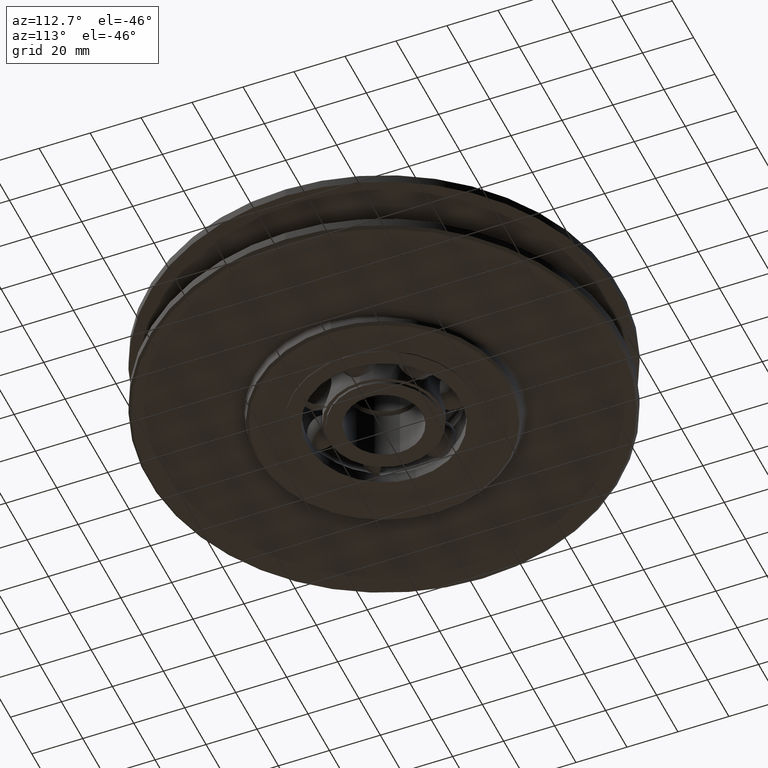
[diagram: clean part render]
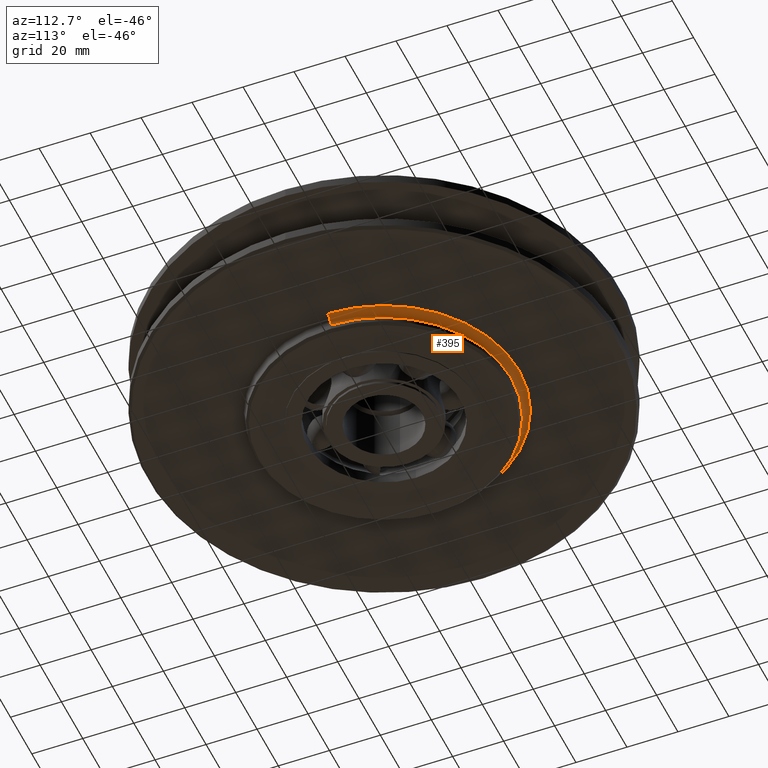
[diagram: same view with one face highlighted and labeled with its STEP entity id]
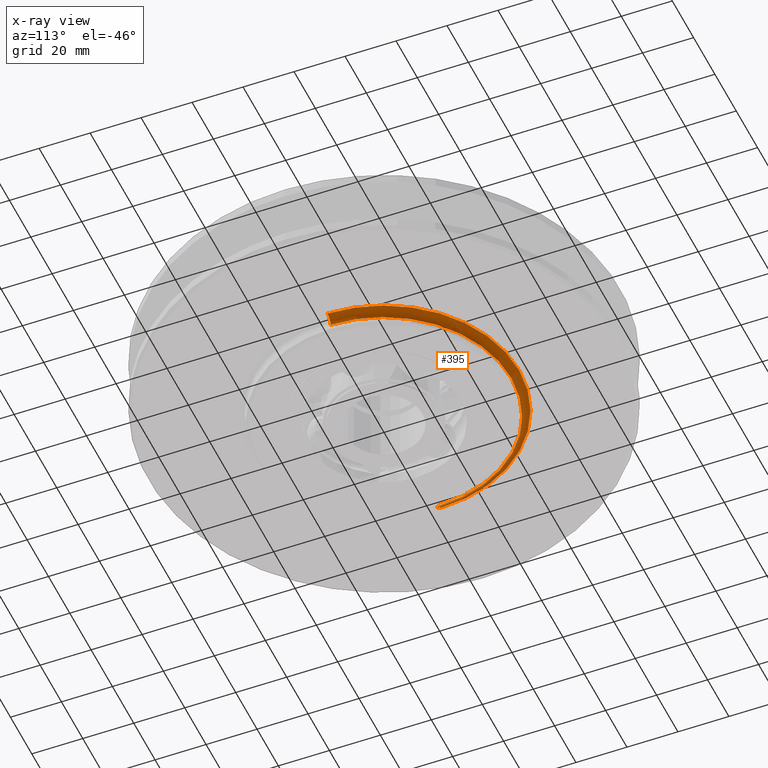
[diagram: x-ray of the same camera — body ghosted, the highlighted face saturated]
A machine part, auxiliary view. The second image highlights one B-rep face of the part: STEP entity #395.
The next image is the same camera in x-ray: the body ghosted, the highlighted face saturated — about 0% of this face is hidden behind the body in this view.
In plain terms, the highlighted toroidal blend (fillet) surface has major radius 53 mm and minor (blend) radius 3 mm.
Its self-contained STEP definition (entity closure, byte-faithful):
#395=ADVANCED_FACE('',(#815),#816,.F.);
#815=FACE_OUTER_BOUND('',#1233,.T.);
#816=TOROIDAL_SURFACE('',#1234,53.0,3.0);
#1233=EDGE_LOOP('',(#2505,#2506,#2507,#2508));
#1234=AXIS2_PLACEMENT_3D('',#2509,#2510,#2511);
#2505=ORIENTED_EDGE('',*,*,#2669,.T.);
#2506=ORIENTED_EDGE('',*,*,#3075,.F.);
#2507=ORIENTED_EDGE('',*,*,#2671,.T.);
#2508=ORIENTED_EDGE('',*,*,#2677,.T.);
#2509=CARTESIAN_POINT('',(0.0,0.0,-17.0));
#2510=DIRECTION('',(0.0,0.0,1.0));
#2511=DIRECTION('',(1.0,0.0,0.0));
#2669=EDGE_CURVE('',#3268,#3269,#3270,.T.);
#2671=EDGE_CURVE('',#3273,#3271,#3274,.T.);
#2677=EDGE_CURVE('',#3271,#3268,#3282,.T.);
#3075=EDGE_CURVE('',#3273,#3269,#3866,.T.);
#3268=VERTEX_POINT('',#5131);
#3269=VERTEX_POINT('',#5132);
#3270=CIRCLE('',#5133,3.0);
#3271=VERTEX_POINT('',#5134);
#3273=VERTEX_POINT('',#5136);
#3274=CIRCLE('',#5137,3.0);
#3282=CIRCLE('',#5147,50.0);
#3866=CIRCLE('',#8499,53.0);
#5131=CARTESIAN_POINT('',(-50.0,6.12323399573676E-015,-17.0));
#5132=CARTESIAN_POINT('',(-53.0,6.49062803548097E-015,-14.0));
#5133=AXIS2_PLACEMENT_3D('',#8662,#8663,#8664);
#5134=CARTESIAN_POINT('',(50.0,0.0,-17.0));
#5136=CARTESIAN_POINT('',(53.0,0.0,-14.0));
#5137=AXIS2_PLACEMENT_3D('',#8668,#8669,#8670);
#5147=AXIS2_PLACEMENT_3D('',#8679,#8680,#8681);
#8499=AXIS2_PLACEMENT_3D('',#9128,#9129,#9130);
#8662=CARTESIAN_POINT('',(-53.0,6.49062803548097E-015,-17.0));
#8663=DIRECTION('',(-1.22464679914735E-016,-1.0,0.0));
#8664=DIRECTION('',(-1.0,1.22464679914735E-016,-0.0));
#8668=CARTESIAN_POINT('',(53.0,-6.49062803548097E-015,-17.0));
#8669=DIRECTION('',(-1.22464679914735E-016,-1.0,0.0));
#8670=DIRECTION('',(1.0,-1.22464679914735E-016,0.0));
#8679=CARTESIAN_POINT('',(0.0,0.0,-17.0));
#8680=DIRECTION('',(0.0,0.0,1.0));
#8681=DIRECTION('',(1.0,0.0,0.0));
#9128=CARTESIAN_POINT('',(0.0,0.0,-14.0));
#9129=DIRECTION('',(0.0,0.0,1.0));
#9130=DIRECTION('',(1.0,0.0,0.0));